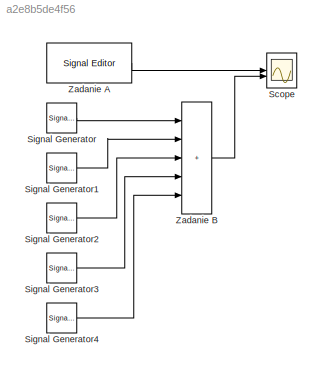
MODEL slx_a2e8b5de4f56
KIND model
CONFIG AbsTol = auto
CONFIG EnableMultiTasking = off
CONFIG FixedStep = auto
CONFIG MaxStep = 0.01
CONFIG MinStep = auto
CONFIG RelTol = 1e-3
CONFIG SampleTimeConstraint = Unconstrained
CONFIG SolverName = VariableStepAuto
CONFIG StartTime = 0.0
CONFIG StopTime = 2
BLOCK [Scope] Scope
  Floating = off
  NumInputPorts = 2
  ScopeSpecificationString = Simulink.scopes.TimeScopeBlockCfg('CurrentConfiguration', extmgr.ConfigurationSet(extmgr.Configuration('Core','General UI',true),extmgr.Configuration('Core','Source UI',true),extmgr.Configuration('Sources','WiredSimulink',true),extmgr.Configuration('Visuals','Time Domain',true,'SerializedDisplays',{struct('MinYLimReal','0.65216','MaxYLimReal','0.96821','YLabelReal','','MinYLimMag','0.65216','MaxYL...<+1407ch>
BLOCK [SignalGenerator] Signal Generator
  Amplitude = ampl1
  Frequency = omega
  Units = rad/sec
BLOCK [SignalGenerator] Signal Generator1
  Amplitude = ampl2
  Frequency = 3*omega
  Units = rad/sec
BLOCK [SignalGenerator] Signal Generator2
  Amplitude = ampl3
  Frequency = omega*5
  Units = rad/sec
BLOCK [SignalGenerator] Signal Generator3
  Amplitude = ampl4
  Frequency = omega*7
  Units = rad/sec
BLOCK [SignalGenerator] Signal Generator4
  Amplitude = ampl5
  Frequency = omega*9
  Units = rad/sec
BLOCK [Reference] Zadanie A  REF=SignalEditorBlockLib/Signal Editor
  LibrarySourceBlock = simulink/Sources/Signal Editor
  SourceBlock = SignalEditorBlockLib/Signal Editor
  SourceType = SignalEditor
  UserDataPersistent = on
BLOCK [Sum] Zadanie B
  IconShape = rectangular
  Inputs = +++++
LINE Signal Generator1:1 -> Zadanie B:2
LINE Signal Generator2:1 -> Zadanie B:3
LINE Signal Generator3:1 -> Zadanie B:4
LINE Signal Generator4:1 -> Zadanie B:5
LINE Signal Generator:1 -> Zadanie B:1
LINE Zadanie A:1 -> Scope:1
LINE Zadanie B:1 -> Scope:2
